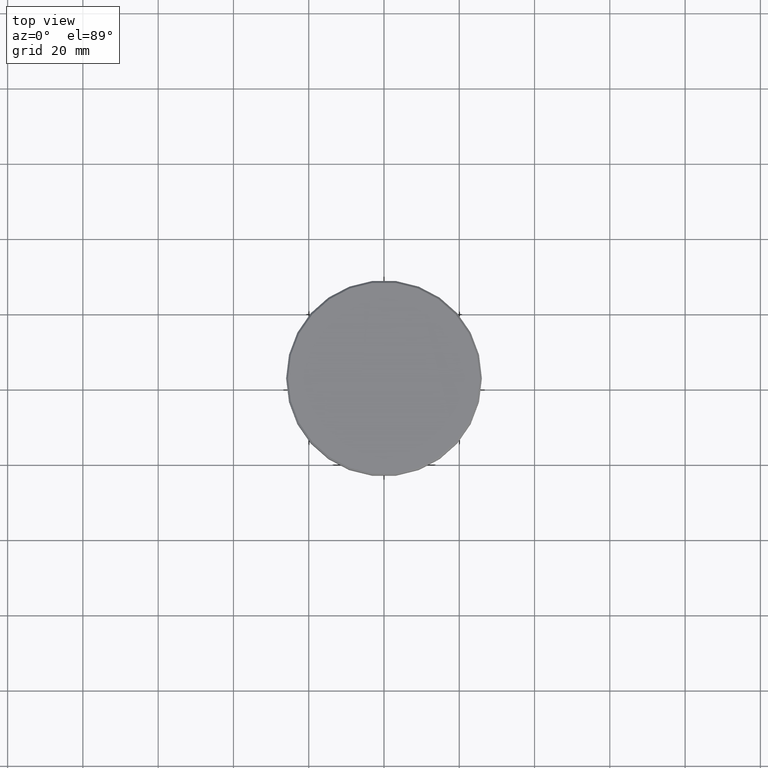
[diagram: clean part render]
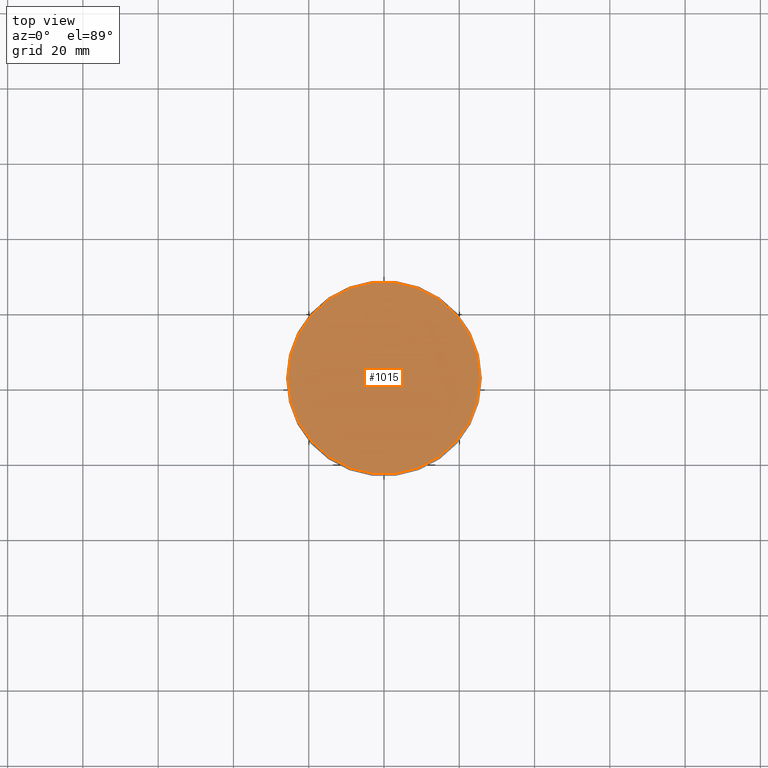
[diagram: same view with one face highlighted and labeled with its STEP entity id]
A machine part, top view. The second image highlights one B-rep face of the part: STEP entity #1015.
In plain terms, the highlighted planar face has unit normal (0, -0, 1).
Its self-contained STEP definition (entity closure, byte-faithful):
#37 = CARTESIAN_POINT ( 'NONE',  ( 0.000000000000000000, 0.000000000000000000, 0.000000000000000000 ) ) ;
#40 = AXIS2_PLACEMENT_3D ( 'NONE', #480, #843, #451 ) ;
#45 = DIRECTION ( 'NONE',  ( 1.000000000000000000, 0.000000000000000000, 0.000000000000000000 ) ) ;
#107 = VERTEX_POINT ( 'NONE', #848 ) ;
#174 = EDGE_CURVE ( 'NONE', #107, #1011, #710, .T. ) ;
#271 = ORIENTED_EDGE ( 'NONE', *, *, #592, .T. ) ;
#281 = AXIS2_PLACEMENT_3D ( 'NONE', #779, #690, #45 ) ;
#299 = DIRECTION ( 'NONE',  ( -0.000000000000000000, -0.000000000000000000, 1.000000000000000000 ) ) ;
#338 = FACE_OUTER_BOUND ( 'NONE', #1049, .T. ) ;
#451 = DIRECTION ( 'NONE',  ( 1.000000000000000000, 0.000000000000000000, 0.000000000000000000 ) ) ;
#480 = CARTESIAN_POINT ( 'NONE',  ( 0.000000000000000000, 0.000000000000000000, 0.000000000000000000 ) ) ;
#505 = CARTESIAN_POINT ( 'NONE',  ( 25.50000000000000000, 3.153465507804434404E-15, 0.000000000000000000 ) ) ;
#592 = EDGE_CURVE ( 'NONE', #1011, #107, #1111, .T. ) ;
#601 = PLANE ( 'NONE',  #281 ) ;
#690 = DIRECTION ( 'NONE',  ( 0.000000000000000000, -0.000000000000000000, 1.000000000000000000 ) ) ;
#710 = CIRCLE ( 'NONE', #896, 25.50000000000000000 ) ;
#779 = CARTESIAN_POINT ( 'NONE',  ( 0.000000000000000000, 0.000000000000000000, 0.000000000000000000 ) ) ;
#843 = DIRECTION ( 'NONE',  ( -0.000000000000000000, -0.000000000000000000, 1.000000000000000000 ) ) ;
#848 = CARTESIAN_POINT ( 'NONE',  ( -25.50000000000000000, 0.000000000000000000, 0.000000000000000000 ) ) ;
#896 = AXIS2_PLACEMENT_3D ( 'NONE', #37, #299, #1010 ) ;
#1010 = DIRECTION ( 'NONE',  ( 1.000000000000000000, 0.000000000000000000, 0.000000000000000000 ) ) ;
#1011 = VERTEX_POINT ( 'NONE', #505 ) ;
#1015 = ADVANCED_FACE ( 'NONE', ( #338 ), #601, .T. ) ;
#1049 = EDGE_LOOP ( 'NONE', ( #1067, #271 ) ) ;
#1067 = ORIENTED_EDGE ( 'NONE', *, *, #174, .T. ) ;
#1111 = CIRCLE ( 'NONE', #40, 25.50000000000000000 ) ;